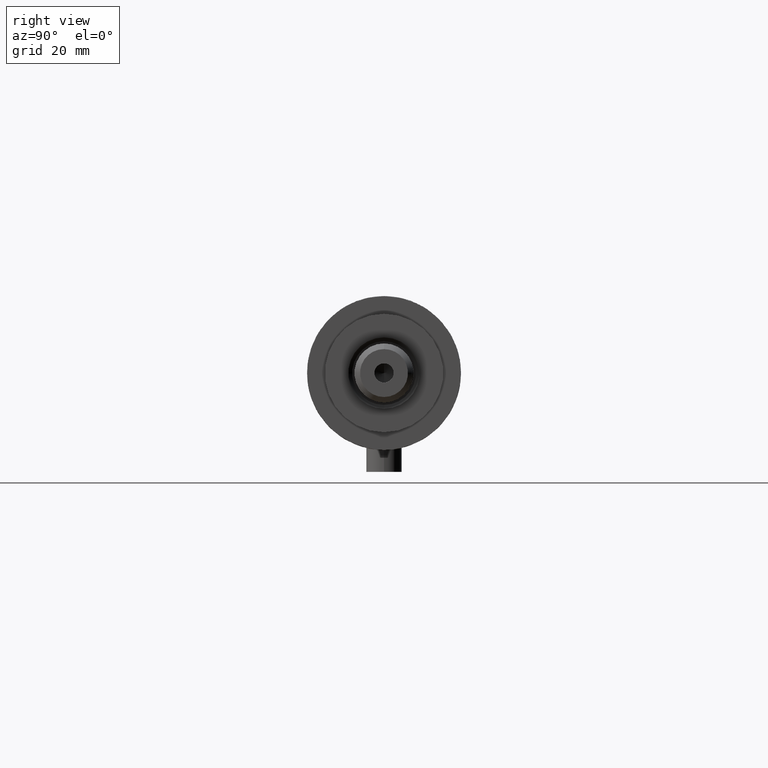
[diagram: clean part render]
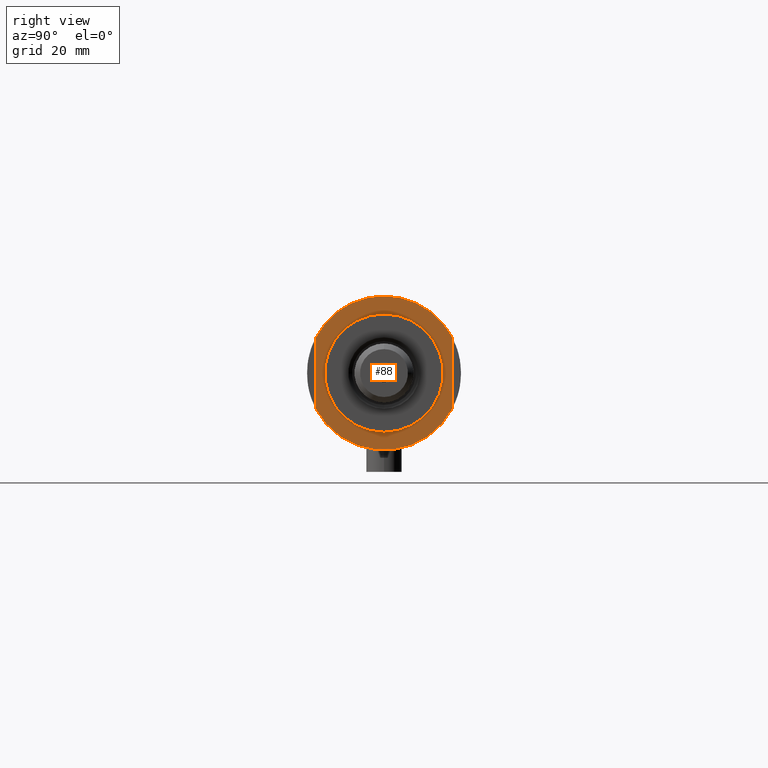
[diagram: same view with one face highlighted and labeled with its STEP entity id]
A machine part, right view. The second image highlights one B-rep face of the part: STEP entity #88.
In plain terms, the highlighted planar face has unit normal (1, 0, -0).
Its self-contained STEP definition (entity closure, byte-faithful):
#17 = ORIENTED_EDGE ( 'NONE', *, *, #5145, .T. ) ;
#88 = ADVANCED_FACE ( 'NONE', ( #1233, #2837 ), #832, .T. ) ;
#282 = EDGE_CURVE ( 'NONE', #3640, #1895, #1974, .T. ) ;
#304 = EDGE_CURVE ( 'NONE', #5008, #1895, #4969, .T. ) ;
#533 = AXIS2_PLACEMENT_3D ( 'NONE', #1640, #3238, #4901 ) ;
#566 = VERTEX_POINT ( 'NONE', #2358 ) ;
#580 = DIRECTION ( 'NONE',  ( -1.000000000000000000, -0.000000000000000000, -0.000000000000000000 ) ) ;
#647 = CARTESIAN_POINT ( 'NONE',  ( -26.00000000000000355, 0.000000000000000000, 15.50000000000000000 ) ) ;
#652 = ORIENTED_EDGE ( 'NONE', *, *, #304, .T. ) ;
#706 = DIRECTION ( 'NONE',  ( 1.000000000000000000, 0.000000000000000000, 0.000000000000000000 ) ) ;
#745 = DIRECTION ( 'NONE',  ( 1.000000000000000000, 0.000000000000000000, 0.000000000000000000 ) ) ;
#757 = DIRECTION ( 'NONE',  ( 1.000000000000000000, 0.000000000000000000, 0.000000000000000000 ) ) ;
#767 = AXIS2_PLACEMENT_3D ( 'NONE', #3516, #5118, #1518 ) ;
#832 = PLANE ( 'NONE',  #767 ) ;
#963 = CIRCLE ( 'NONE', #533, 26.00000000000000355 ) ;
#1233 = FACE_BOUND ( 'NONE', #4929, .T. ) ;
#1329 = EDGE_CURVE ( 'NONE', #2209, #566, #4050, .T. ) ;
#1378 = CARTESIAN_POINT ( 'NONE',  ( 20.00000000000000000, 0.000000000000000000, 15.50000000000000000 ) ) ;
#1518 = DIRECTION ( 'NONE',  ( 1.000000000000000000, 0.000000000000000000, -0.000000000000000000 ) ) ;
#1557 = DIRECTION ( 'NONE',  ( 1.000000000000000000, 0.000000000000000000, 0.000000000000000000 ) ) ;
#1640 = CARTESIAN_POINT ( 'NONE',  ( 0.000000000000000000, 0.000000000000000000, 15.50000000000000000 ) ) ;
#1781 = ORIENTED_EDGE ( 'NONE', *, *, #3972, .T. ) ;
#1895 = VERTEX_POINT ( 'NONE', #4720 ) ;
#1946 = CARTESIAN_POINT ( 'NONE',  ( -12.12435565298215145, 23.00000000000000355, 15.50000000000000000 ) ) ;
#1974 = LINE ( 'NONE', #1946, #3365 ) ;
#2065 = ORIENTED_EDGE ( 'NONE', *, *, #3277, .T. ) ;
#2105 = DIRECTION ( 'NONE',  ( 1.000000000000000000, 0.000000000000000000, 0.000000000000000000 ) ) ;
#2206 = DIRECTION ( 'NONE',  ( 0.000000000000000000, 0.000000000000000000, 1.000000000000000000 ) ) ;
#2209 = VERTEX_POINT ( 'NONE', #1378 ) ;
#2358 = CARTESIAN_POINT ( 'NONE',  ( -20.00000000000000000, 2.449293598294706513E-15, 15.50000000000000000 ) ) ;
#2448 = VERTEX_POINT ( 'NONE', #2772 ) ;
#2527 = CARTESIAN_POINT ( 'NONE',  ( 0.000000000000000000, 0.000000000000000000, 15.50000000000000000 ) ) ;
#2651 = CARTESIAN_POINT ( 'NONE',  ( -12.12435565298215145, -22.99999999999999645, 15.50000000000000000 ) ) ;
#2772 = CARTESIAN_POINT ( 'NONE',  ( -12.12435565298215323, -22.99999999999999645, 15.50000000000000000 ) ) ;
#2821 = AXIS2_PLACEMENT_3D ( 'NONE', #3592, #5190, #706 ) ;
#2837 = FACE_OUTER_BOUND ( 'NONE', #3383, .T. ) ;
#3154 = AXIS2_PLACEMENT_3D ( 'NONE', #2527, #2206, #2105 ) ;
#3235 = CIRCLE ( 'NONE', #3154, 26.00000000000000355 ) ;
#3238 = DIRECTION ( 'NONE',  ( 0.000000000000000000, 0.000000000000000000, 1.000000000000000000 ) ) ;
#3249 = DIRECTION ( 'NONE',  ( -0.000000000000000000, -0.000000000000000000, -1.000000000000000000 ) ) ;
#3273 = ORIENTED_EDGE ( 'NONE', *, *, #1329, .T. ) ;
#3277 = EDGE_CURVE ( 'NONE', #4058, #2448, #963, .T. ) ;
#3328 = LINE ( 'NONE', #2651, #4163 ) ;
#3365 = VECTOR ( 'NONE', #757, 1000.000000000000000 ) ;
#3383 = EDGE_LOOP ( 'NONE', ( #4398, #652, #3581, #1781, #2065 ) ) ;
#3400 = CARTESIAN_POINT ( 'NONE',  ( 12.12435565298215323, -22.99999999999999645, 15.50000000000000000 ) ) ;
#3516 = CARTESIAN_POINT ( 'NONE',  ( 0.000000000000000000, 0.000000000000000000, 15.50000000000000000 ) ) ;
#3556 = CARTESIAN_POINT ( 'NONE',  ( 0.000000000000000000, 0.000000000000000000, 15.50000000000000000 ) ) ;
#3581 = ORIENTED_EDGE ( 'NONE', *, *, #282, .F. ) ;
#3592 = CARTESIAN_POINT ( 'NONE',  ( 0.000000000000000000, 0.000000000000000000, 15.50000000000000000 ) ) ;
#3638 = AXIS2_PLACEMENT_3D ( 'NONE', #3556, #5156, #1557 ) ;
#3640 = VERTEX_POINT ( 'NONE', #4070 ) ;
#3648 = AXIS2_PLACEMENT_3D ( 'NONE', #4060, #3249, #745 ) ;
#3972 = EDGE_CURVE ( 'NONE', #3640, #4058, #3235, .T. ) ;
#4050 = CIRCLE ( 'NONE', #3648, 20.00000000000000000 ) ;
#4058 = VERTEX_POINT ( 'NONE', #647 ) ;
#4060 = CARTESIAN_POINT ( 'NONE',  ( 0.000000000000000000, 0.000000000000000000, 15.50000000000000000 ) ) ;
#4070 = CARTESIAN_POINT ( 'NONE',  ( -12.12435565298214613, 23.00000000000000355, 15.50000000000000000 ) ) ;
#4154 = CIRCLE ( 'NONE', #2821, 20.00000000000000000 ) ;
#4163 = VECTOR ( 'NONE', #580, 1000.000000000000000 ) ;
#4276 = EDGE_CURVE ( 'NONE', #5008, #2448, #3328, .T. ) ;
#4398 = ORIENTED_EDGE ( 'NONE', *, *, #4276, .F. ) ;
#4720 = CARTESIAN_POINT ( 'NONE',  ( 12.12435565298214790, 23.00000000000000355, 15.50000000000000000 ) ) ;
#4901 = DIRECTION ( 'NONE',  ( 1.000000000000000000, 0.000000000000000000, 0.000000000000000000 ) ) ;
#4929 = EDGE_LOOP ( 'NONE', ( #3273, #17 ) ) ;
#4969 = CIRCLE ( 'NONE', #3638, 26.00000000000000355 ) ;
#5008 = VERTEX_POINT ( 'NONE', #3400 ) ;
#5118 = DIRECTION ( 'NONE',  ( 0.000000000000000000, 0.000000000000000000, 1.000000000000000000 ) ) ;
#5145 = EDGE_CURVE ( 'NONE', #566, #2209, #4154, .T. ) ;
#5156 = DIRECTION ( 'NONE',  ( 0.000000000000000000, 0.000000000000000000, 1.000000000000000000 ) ) ;
#5190 = DIRECTION ( 'NONE',  ( -0.000000000000000000, -0.000000000000000000, -1.000000000000000000 ) ) ;